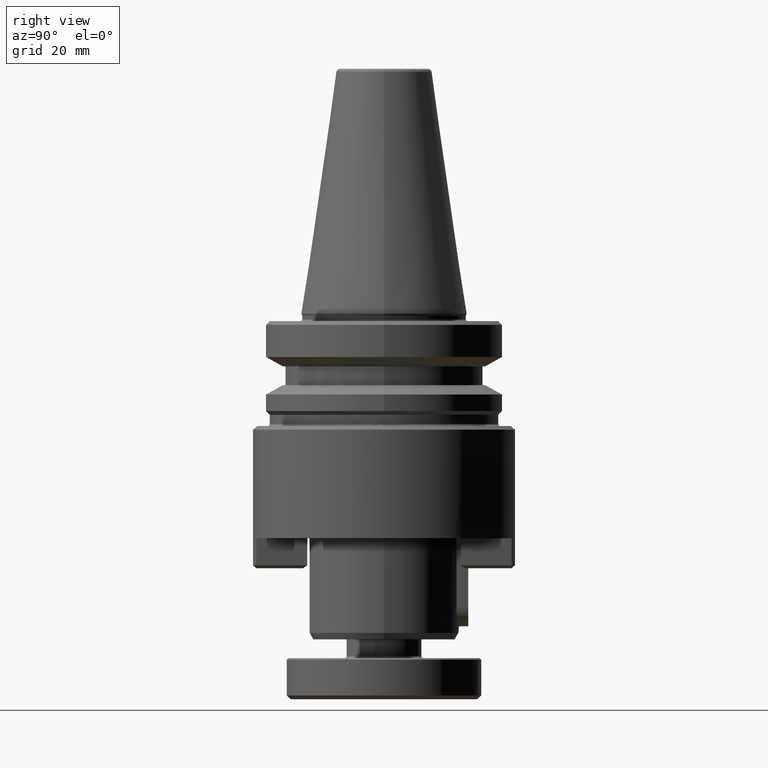
[diagram: clean part render]
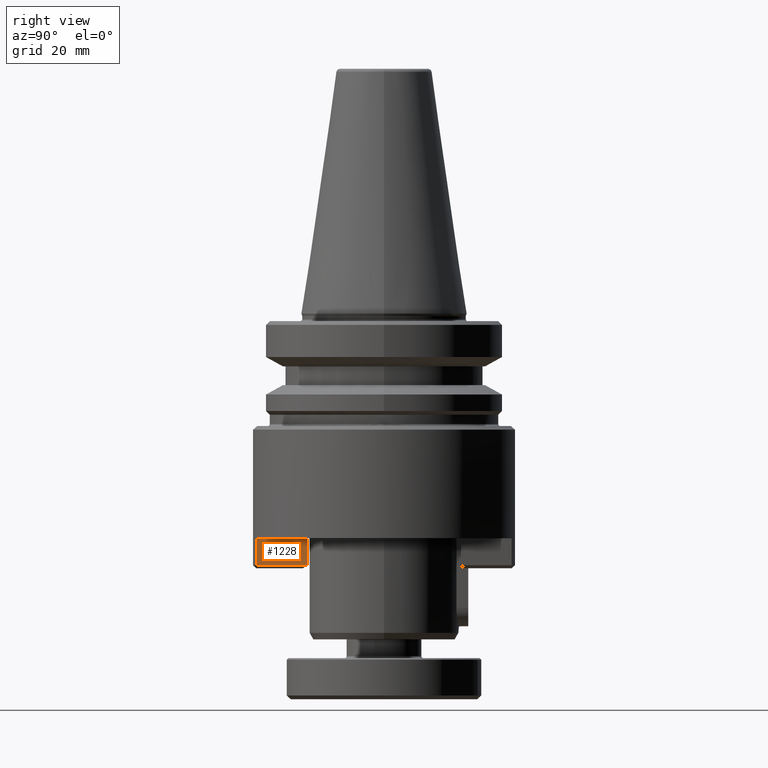
[diagram: same view with one face highlighted and labeled with its STEP entity id]
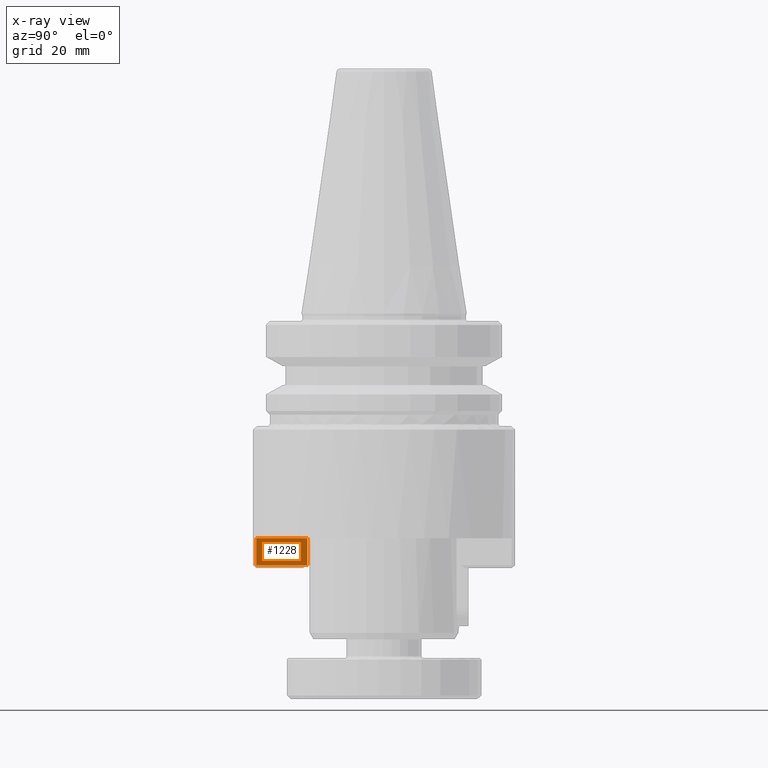
[diagram: x-ray of the same camera — body ghosted, the highlighted face saturated]
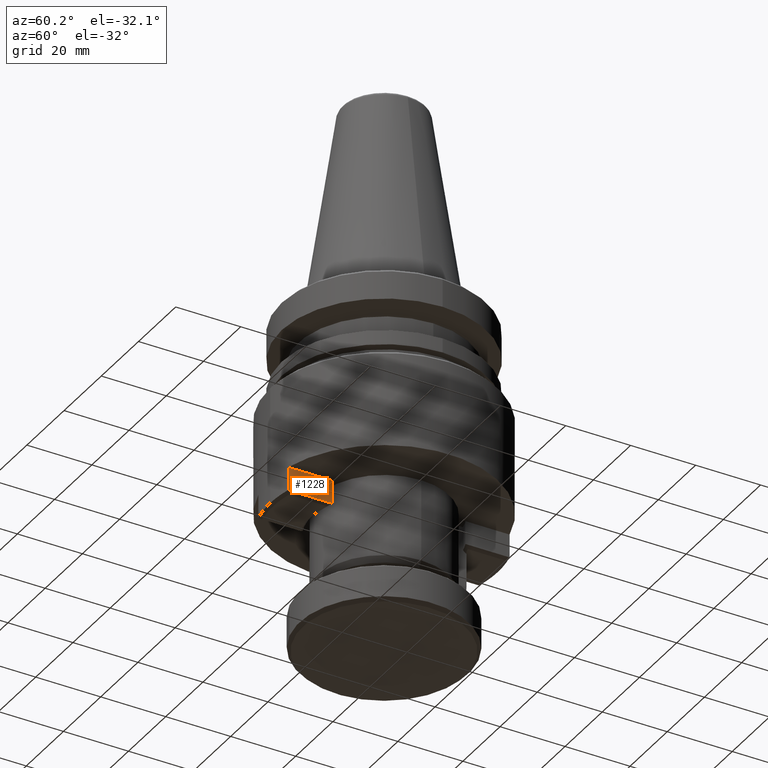
[diagram: same view with one face highlighted and labeled with its STEP entity id]
A machine part, right view. The second image highlights one B-rep face of the part: STEP entity #1228.
The next image is the same camera in x-ray: the body ghosted, the highlighted face saturated — about 0% of this face is hidden behind the body in this view.
A second angle (auxiliary view) of the same face is appended — the face is thin or edge-on in the first view.
In plain terms, the highlighted planar face has unit normal (1, -0, 0).
Its self-contained STEP definition (entity closure, byte-faithful):
#47 = LINE ( 'NONE', #1103, #537 ) ;
#70 = VERTEX_POINT ( 'NONE', #2724 ) ;
#243 = EDGE_CURVE ( 'NONE', #3014, #713, #2903, .T. ) ;
#312 = PLANE ( 'NONE',  #2310 ) ;
#333 = EDGE_CURVE ( 'NONE', #70, #713, #3053, .T. ) ;
#405 = CARTESIAN_POINT ( 'NONE',  ( 81.52171165756638500, 76.05512951957206300, 44.69519239969249500 ) ) ;
#466 = ORIENTED_EDGE ( 'NONE', *, *, #333, .F. ) ;
#537 = VECTOR ( 'NONE', #3338, 1000.000000000000000 ) ;
#562 = CARTESIAN_POINT ( 'NONE',  ( 81.52171165756638500, 62.47558097688330000, 45.19519239629250500 ) ) ;
#569 = DIRECTION ( 'NONE',  ( 0.0000000000000000000, 0.0000000000000000000, -1.000000000000000000 ) ) ;
#646 = ORIENTED_EDGE ( 'NONE', *, *, #243, .T. ) ;
#648 = EDGE_CURVE ( 'NONE', #2423, #3014, #1853, .T. ) ;
#713 = VERTEX_POINT ( 'NONE', #1689 ) ;
#732 = EDGE_CURVE ( 'NONE', #70, #2423, #47, .T. ) ;
#909 = EDGE_LOOP ( 'NONE', ( #2022, #646, #466, #1462 ) ) ;
#923 = CARTESIAN_POINT ( 'NONE',  ( 81.52171165756638500, 76.05512951957206300, 45.19519239629250500 ) ) ;
#1103 = CARTESIAN_POINT ( 'NONE',  ( 81.52171165756638500, 62.47558097688330000, 37.49519239629250900 ) ) ;
#1228 = ADVANCED_FACE ( 'NONE', ( #3069 ), #312, .T. ) ;
#1462 = ORIENTED_EDGE ( 'NONE', *, *, #732, .T. ) ;
#1465 = CARTESIAN_POINT ( 'NONE',  ( 81.52171165756638500, 62.06669957588329800, 44.69519239629250500 ) ) ;
#1633 = CARTESIAN_POINT ( 'NONE',  ( 81.52171165756638500, 76.05512951976808700, 37.49519239615826600 ) ) ;
#1689 = CARTESIAN_POINT ( 'NONE',  ( 81.52171165826743500, 62.47558097741085000, 44.69519239799250700 ) ) ;
#1853 = LINE ( 'NONE', #923, #1894 ) ;
#1894 = VECTOR ( 'NONE', #2916, 1000.000000000000000 ) ;
#2022 = ORIENTED_EDGE ( 'NONE', *, *, #648, .T. ) ;
#2096 = CARTESIAN_POINT ( 'NONE',  ( 81.52171166037059900, 62.47558097774004400, 37.49519239629250900 ) ) ;
#2171 = DIRECTION ( 'NONE',  ( 1.000000000000000000, -0.0000000000000000000, 0.0000000000000000000 ) ) ;
#2310 = AXIS2_PLACEMENT_3D ( 'NONE', #562, #2171, #569 ) ;
#2423 = VERTEX_POINT ( 'NONE', #1633 ) ;
#2724 = CARTESIAN_POINT ( 'NONE',  ( 81.52171165896848500, 62.47558097741085000, 37.49519239629250900 ) ) ;
#2849 = DIRECTION ( 'NONE',  ( 0.0000000000000000000, -2.478176394252581700E-017, 1.000000000000000000 ) ) ;
#2903 = LINE ( 'NONE', #1465, #3166 ) ;
#2916 = DIRECTION ( 'NONE',  ( -0.0000000000000000000, -0.0000000000000000000, 1.000000000000000000 ) ) ;
#3014 = VERTEX_POINT ( 'NONE', #405 ) ;
#3053 = LINE ( 'NONE', #2096, #3319 ) ;
#3069 = FACE_OUTER_BOUND ( 'NONE', #909, .T. ) ;
#3166 = VECTOR ( 'NONE', #3262, 1000.000000000000000 ) ;
#3262 = DIRECTION ( 'NONE',  ( 0.0000000000000000000, -1.000000000000000000, -0.0000000000000000000 ) ) ;
#3319 = VECTOR ( 'NONE', #2849, 1000.000000000000000 ) ;
#3338 = DIRECTION ( 'NONE',  ( 0.0000000000000000000, 1.000000000000000000, 0.0000000000000000000 ) ) ;